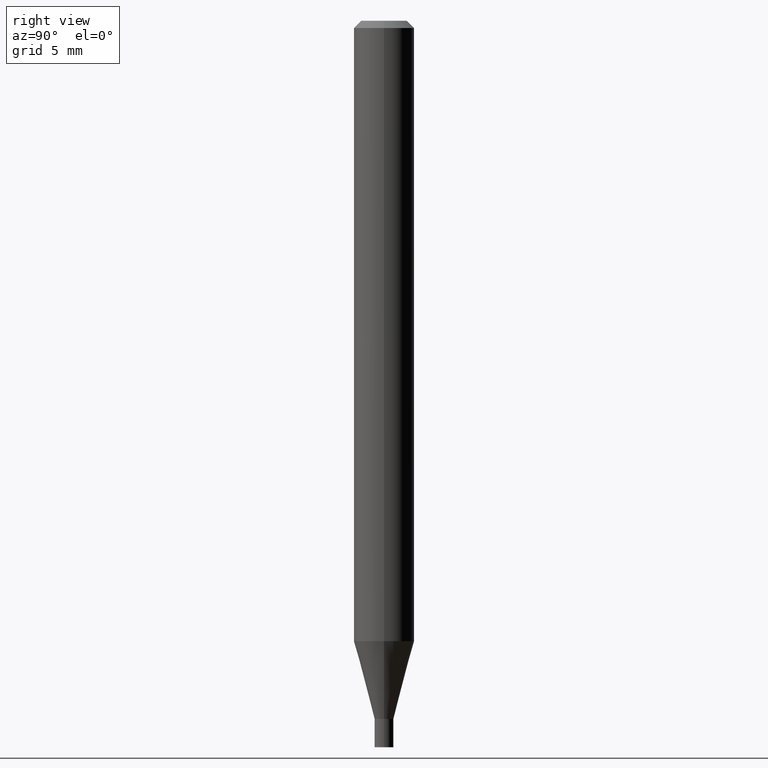
[diagram: clean part render]
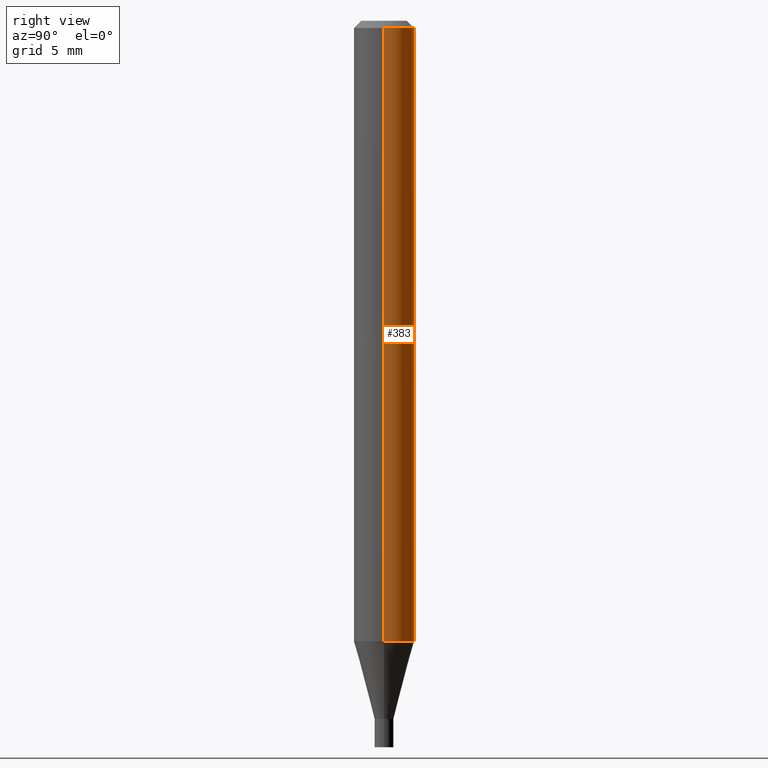
[diagram: same view with one face highlighted and labeled with its STEP entity id]
A machine part, right view. The second image highlights one B-rep face of the part: STEP entity #383.
In plain terms, the highlighted cylindrical surface (edge-blend (fillet) strip) has radius 1.5875 mm, axis along (-0, 0, 1).
Its self-contained STEP definition (entity closure, byte-faithful):
#11 = EDGE_CURVE ( 'NONE', #58, #307, #102, .T. ) ;
#38 = VERTEX_POINT ( 'NONE', #415 ) ;
#40 = AXIS2_PLACEMENT_3D ( 'NONE', #447, #151, #77 ) ;
#45 = EDGE_CURVE ( 'NONE', #242, #38, #352, .T. ) ;
#58 = VERTEX_POINT ( 'NONE', #300 ) ;
#68 = CARTESIAN_POINT ( 'NONE',  ( -0.06250000000000000000, -4.028574552831956093E-15, -1.281021815274537401 ) ) ;
#77 = DIRECTION ( 'NONE',  ( 1.000000000000000000, -6.982962677686266711E-15, 0.000000000000000000 ) ) ;
#78 = FACE_OUTER_BOUND ( 'NONE', #391, .T. ) ;
#102 = CIRCLE ( 'NONE', #374, 0.06250000000000000000 ) ;
#147 = LINE ( 'NONE', #407, #332 ) ;
#151 = DIRECTION ( 'NONE',  ( -2.445468806185136597E-29, 3.491481338843145583E-15, 1.000000000000000000 ) ) ;
#152 = DIRECTION ( 'NONE',  ( -2.445468806185136597E-29, 3.491481338843145583E-15, 1.000000000000000000 ) ) ;
#157 = VECTOR ( 'NONE', #171, 39.37007874015748143 ) ;
#171 = DIRECTION ( 'NONE',  ( -2.445468806185136877E-29, 3.491481338843145188E-15, 1.000000000000000000 ) ) ;
#179 = CARTESIAN_POINT ( 'NONE',  ( -0.06250000000000000000, 4.440892098500626162E-16, -3.074334431409316114E-30 ) ) ;
#236 = ORIENTED_EDGE ( 'NONE', *, *, #425, .F. ) ;
#242 = VERTEX_POINT ( 'NONE', #364 ) ;
#268 = ORIENTED_EDGE ( 'NONE', *, *, #11, .T. ) ;
#271 = DIRECTION ( 'NONE',  ( -2.445468806185136597E-29, 3.491481338843145583E-15, 1.000000000000000000 ) ) ;
#294 = EDGE_CURVE ( 'NONE', #307, #38, #362, .T. ) ;
#299 = DIRECTION ( 'NONE',  ( 1.000000000000000000, -6.982962677686266711E-15, 4.876176775795935793E-29 ) ) ;
#300 = CARTESIAN_POINT ( 'NONE',  ( 0.06250000000000000000, -4.909098930037410379E-15, -1.281021815274537401 ) ) ;
#304 = CARTESIAN_POINT ( 'NONE',  ( 3.132698889296539192E-29, -4.472663762682018710E-15, -1.281021815274537401 ) ) ;
#306 = DIRECTION ( 'NONE',  ( 1.000000000000000000, -6.982962677686262766E-15, 0.000000000000000000 ) ) ;
#307 = VERTEX_POINT ( 'NONE', #68 ) ;
#329 = CYLINDRICAL_SURFACE ( 'NONE', #385, 0.06250000000000000000 ) ;
#332 = VECTOR ( 'NONE', #373, 39.37007874015748143 ) ;
#352 = CIRCLE ( 'NONE', #40, 0.06250000000000000000 ) ;
#362 = LINE ( 'NONE', #179, #157 ) ;
#364 = CARTESIAN_POINT ( 'NONE',  ( 0.06250000000000000000, -4.888073874380388472E-16, -0.01499999999999999944 ) ) ;
#372 = CARTESIAN_POINT ( 'NONE',  ( 0.000000000000000000, 0.000000000000000000, 0.000000000000000000 ) ) ;
#373 = DIRECTION ( 'NONE',  ( -2.445468806185136877E-29, 3.491481338843145188E-15, 1.000000000000000000 ) ) ;
#374 = AXIS2_PLACEMENT_3D ( 'NONE', #304, #271, #306 ) ;
#383 = ADVANCED_FACE ( 'NONE', ( #78 ), #329, .T. ) ;
#385 = AXIS2_PLACEMENT_3D ( 'NONE', #372, #152, #299 ) ;
#391 = EDGE_LOOP ( 'NONE', ( #268, #463, #416, #236 ) ) ;
#407 = CARTESIAN_POINT ( 'NONE',  ( 0.06250000000000000000, -4.364351673553916694E-16, 3.047610484872459871E-30 ) ) ;
#415 = CARTESIAN_POINT ( 'NONE',  ( -0.06250000000000000000, -1.818428781532270475E-15, -0.01499999999999999944 ) ) ;
#416 = ORIENTED_EDGE ( 'NONE', *, *, #45, .F. ) ;
#425 = EDGE_CURVE ( 'NONE', #58, #242, #147, .T. ) ;
#447 = CARTESIAN_POINT ( 'NONE',  ( 3.668203209277705088E-31, -5.237222008264718399E-17, -0.01499999999999999944 ) ) ;
#463 = ORIENTED_EDGE ( 'NONE', *, *, #294, .T. ) ;